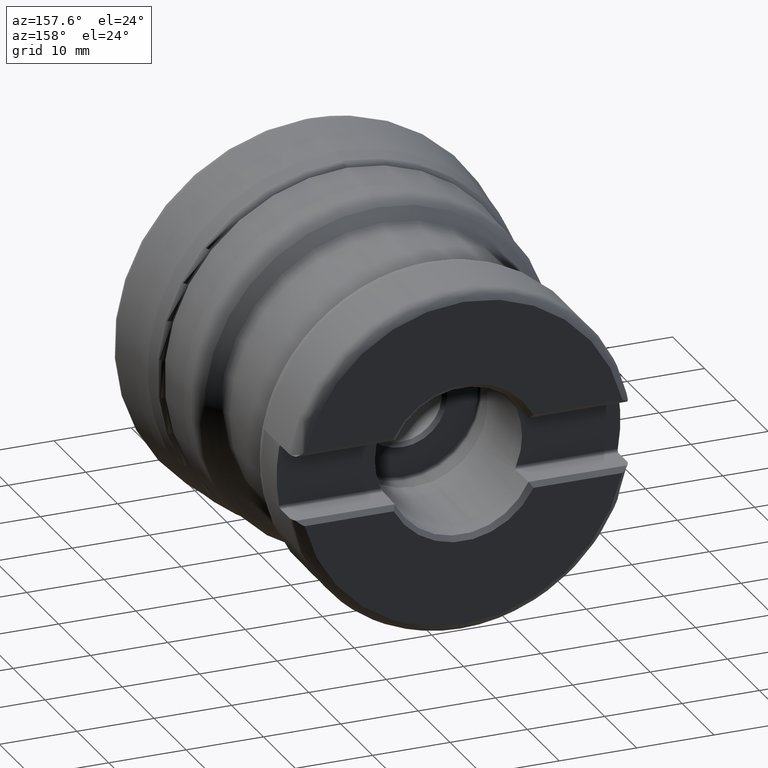
[diagram: clean part render]
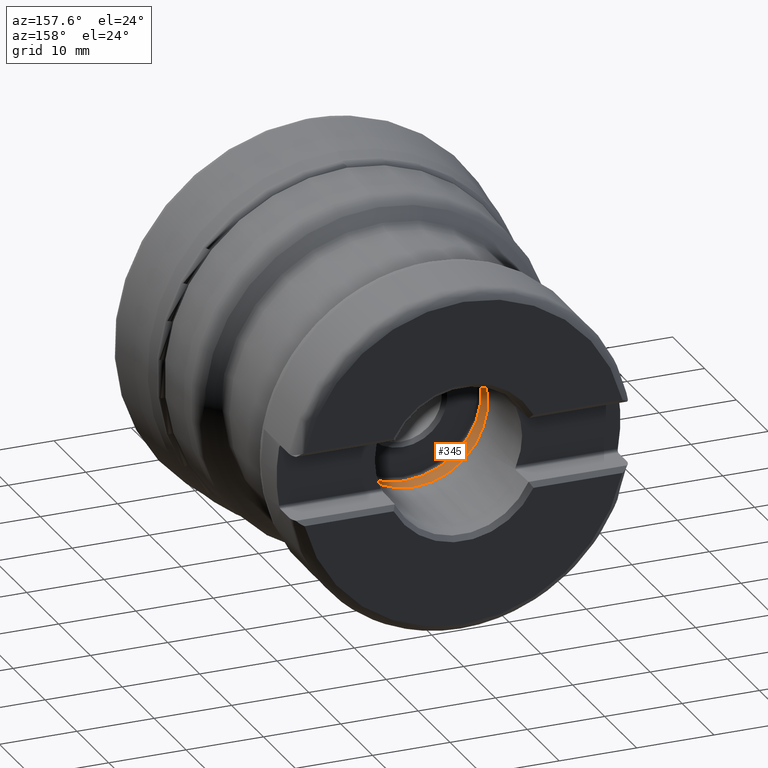
[diagram: same view with one face highlighted and labeled with its STEP entity id]
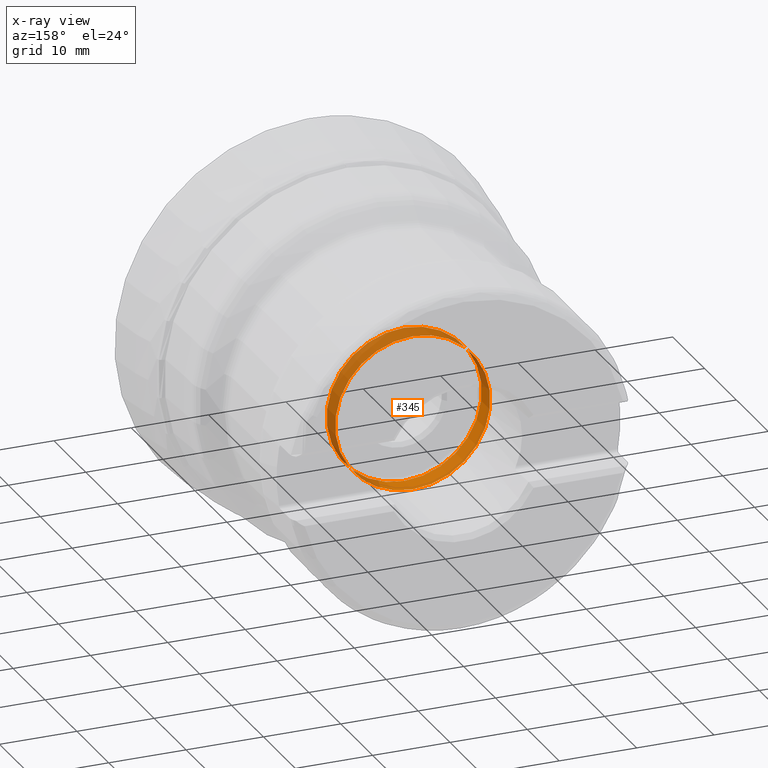
[diagram: x-ray of the same camera — body ghosted, the highlighted face saturated]
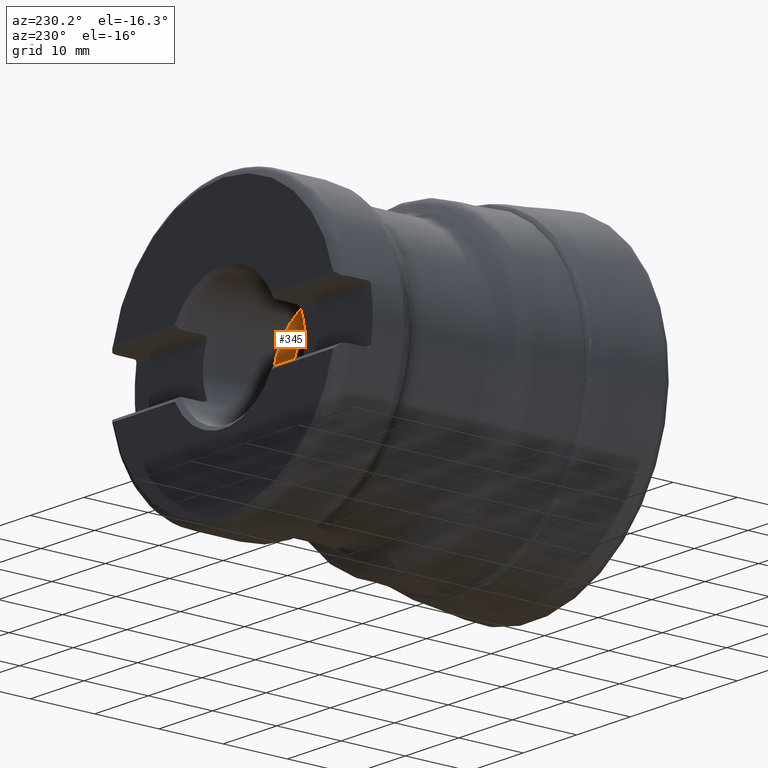
[diagram: same view with one face highlighted and labeled with its STEP entity id]
A machine part, auxiliary view. The second image highlights one B-rep face of the part: STEP entity #345.
The next image is the same camera in x-ray: the body ghosted, the highlighted face saturated — about 57% of this face is hidden behind the body in this view.
A second angle (auxiliary view) of the same face is appended — the face is thin or edge-on in the first view.
In plain terms, the highlighted cylindrical surface (bore or boss wall) has radius 10.025 mm, axis along (0, -1, 0).
Its self-contained STEP definition (entity closure, byte-faithful):
#345=ADVANCED_FACE('',(#425,#426),#404,.F.);
#404=CYLINDRICAL_SURFACE('',#1183,10.025);
#425=FACE_BOUND('',#537,.T.);
#426=FACE_BOUND('',#538,.T.);
#537=EDGE_LOOP('',(#739));
#538=EDGE_LOOP('',(#740));
#739=ORIENTED_EDGE('',*,*,#1022,.T.);
#740=ORIENTED_EDGE('',*,*,#1023,.T.);
#913=VERTEX_POINT('',#1899);
#914=VERTEX_POINT('',#1901);
#1022=EDGE_CURVE('',#913,#913,#1093,.T.);
#1023=EDGE_CURVE('',#914,#914,#1094,.T.);
#1093=CIRCLE('',#1181,10.025);
#1094=CIRCLE('',#1182,10.025);
#1181=AXIS2_PLACEMENT_3D('',#1898,#1368,#1369);
#1182=AXIS2_PLACEMENT_3D('',#1900,#1370,#1371);
#1183=AXIS2_PLACEMENT_3D('',#1902,#1372,#1373);
#1368=DIRECTION('',(0.,1.,0.));
#1369=DIRECTION('',(0.,0.,1.));
#1370=DIRECTION('',(0.,-1.,0.));
#1371=DIRECTION('',(0.,0.,-1.));
#1372=DIRECTION('',(0.,-1.,0.));
#1373=DIRECTION('',(0.,0.,-1.));
#1898=CARTESIAN_POINT('',(0.,34.05,0.));
#1899=CARTESIAN_POINT('',(0.,34.05,10.025));
#1900=CARTESIAN_POINT('',(0.,31.35,0.));
#1901=CARTESIAN_POINT('',(0.,31.35,-10.025));
#1902=CARTESIAN_POINT('',(0.,50.2,0.));